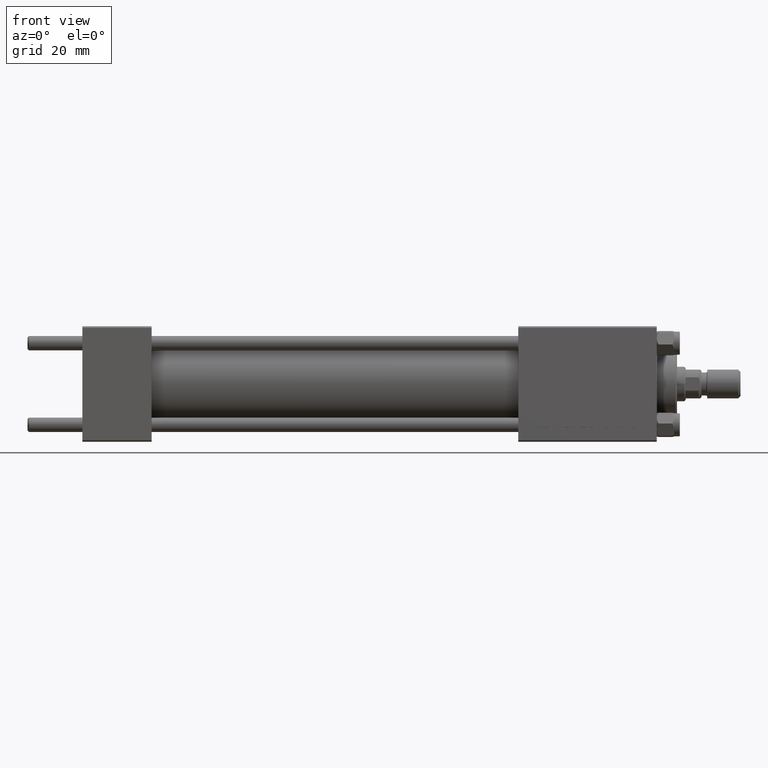
[diagram: clean part render]
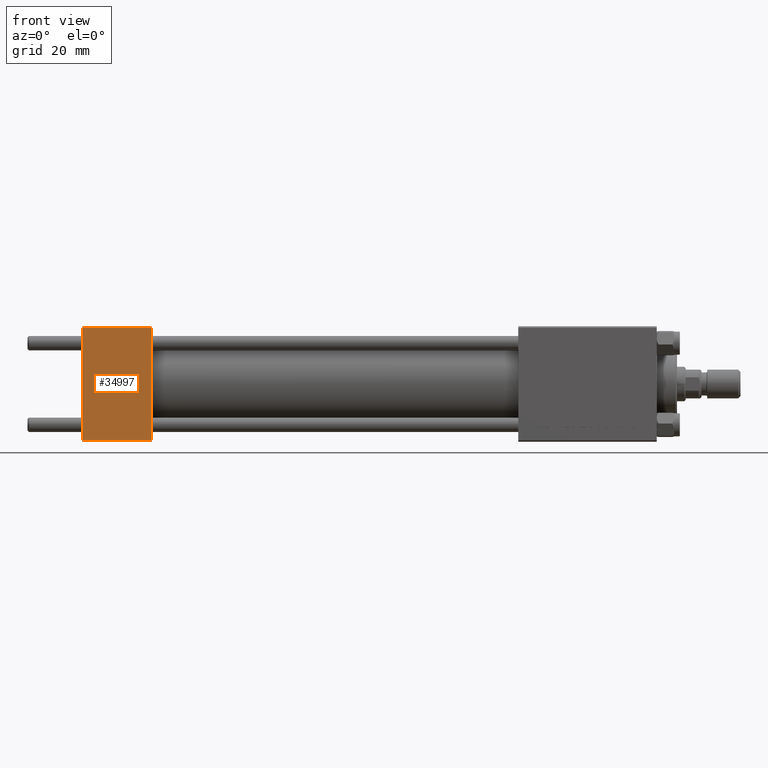
[diagram: same view with one face highlighted and labeled with its STEP entity id]
A machine part, front view. The second image highlights one B-rep face of the part: STEP entity #34997.
In plain terms, the highlighted planar face has unit normal (0, 1, 0).
Its self-contained STEP definition (entity closure, byte-faithful):
#2001 = VERTEX_POINT ( 'NONE', #27076 ) ;
#3882 = FACE_OUTER_BOUND ( 'NONE', #35296, .T. ) ;
#5896 = CARTESIAN_POINT ( 'NONE',  ( 24.00000000000000000, -20.00000000000000355, 19.49999999999998224 ) ) ;
#10032 = DIRECTION ( 'NONE',  ( 1.000000000000000000, 0.000000000000000000, 0.000000000000000000 ) ) ;
#10537 = CARTESIAN_POINT ( 'NONE',  ( 24.00000000000000000, -20.00000000000000000, -19.49999999999999645 ) ) ;
#12631 = LINE ( 'NONE', #20267, #13299 ) ;
#13130 = DIRECTION ( 'NONE',  ( 0.000000000000000000, 8.673617379884036705E-17, -1.000000000000000000 ) ) ;
#13299 = VECTOR ( 'NONE', #13130, 1000.000000000000000 ) ;
#15347 = CARTESIAN_POINT ( 'NONE',  ( 0.000000000000000000, -20.00000000000000000, -19.49999999999999645 ) ) ;
#16965 = EDGE_CURVE ( 'NONE', #37154, #27354, #12631, .T. ) ;
#17411 = ORIENTED_EDGE ( 'NONE', *, *, #49621, .T. ) ;
#18907 = CARTESIAN_POINT ( 'NONE',  ( 24.00000000000000000, -20.00000000000000355, 19.49999999999998224 ) ) ;
#18914 = ORIENTED_EDGE ( 'NONE', *, *, #37621, .F. ) ;
#20267 = CARTESIAN_POINT ( 'NONE',  ( 0.000000000000000000, -20.00000000000000355, 19.99999999999998934 ) ) ;
#22182 = LINE ( 'NONE', #5896, #32499 ) ;
#22245 = LINE ( 'NONE', #10537, #32298 ) ;
#23236 = PLANE ( 'NONE',  #27611 ) ;
#24265 = CARTESIAN_POINT ( 'NONE',  ( 0.000000000000000000, -20.00000000000000355, 19.49999999999998224 ) ) ;
#26005 = DIRECTION ( 'NONE',  ( -1.000000000000000000, 0.000000000000000000, 0.000000000000000000 ) ) ;
#26373 = ORIENTED_EDGE ( 'NONE', *, *, #16965, .T. ) ;
#27076 = CARTESIAN_POINT ( 'NONE',  ( 24.00000000000000000, -20.00000000000000000, -19.49999999999999645 ) ) ;
#27354 = VERTEX_POINT ( 'NONE', #15347 ) ;
#27611 = AXIS2_PLACEMENT_3D ( 'NONE', #46191, #41848, #45690 ) ;
#28776 = CARTESIAN_POINT ( 'NONE',  ( 24.00000000000000000, -20.00000000000000355, 19.99999999999998934 ) ) ;
#32298 = VECTOR ( 'NONE', #10032, 1000.000000000000000 ) ;
#32499 = VECTOR ( 'NONE', #26005, 1000.000000000000000 ) ;
#34997 = ADVANCED_FACE ( 'NONE', ( #3882 ), #23236, .F. ) ;
#35031 = VERTEX_POINT ( 'NONE', #18907 ) ;
#35296 = EDGE_LOOP ( 'NONE', ( #26373, #17411, #18914, #42421 ) ) ;
#36005 = EDGE_CURVE ( 'NONE', #35031, #37154, #22182, .T. ) ;
#37154 = VERTEX_POINT ( 'NONE', #24265 ) ;
#37621 = EDGE_CURVE ( 'NONE', #35031, #2001, #45086, .T. ) ;
#41490 = VECTOR ( 'NONE', #44832, 1000.000000000000000 ) ;
#41848 = DIRECTION ( 'NONE',  ( -0.000000000000000000, 1.000000000000000000, 8.673617379884036705E-17 ) ) ;
#42421 = ORIENTED_EDGE ( 'NONE', *, *, #36005, .T. ) ;
#44832 = DIRECTION ( 'NONE',  ( 0.000000000000000000, 8.673617379884036705E-17, -1.000000000000000000 ) ) ;
#45086 = LINE ( 'NONE', #28776, #41490 ) ;
#45690 = DIRECTION ( 'NONE',  ( 0.000000000000000000, -8.673617379884036705E-17, 1.000000000000000000 ) ) ;
#46191 = CARTESIAN_POINT ( 'NONE',  ( 24.00000000000000000, -20.00000000000000355, 19.99999999999998934 ) ) ;
#49621 = EDGE_CURVE ( 'NONE', #27354, #2001, #22245, .T. ) ;